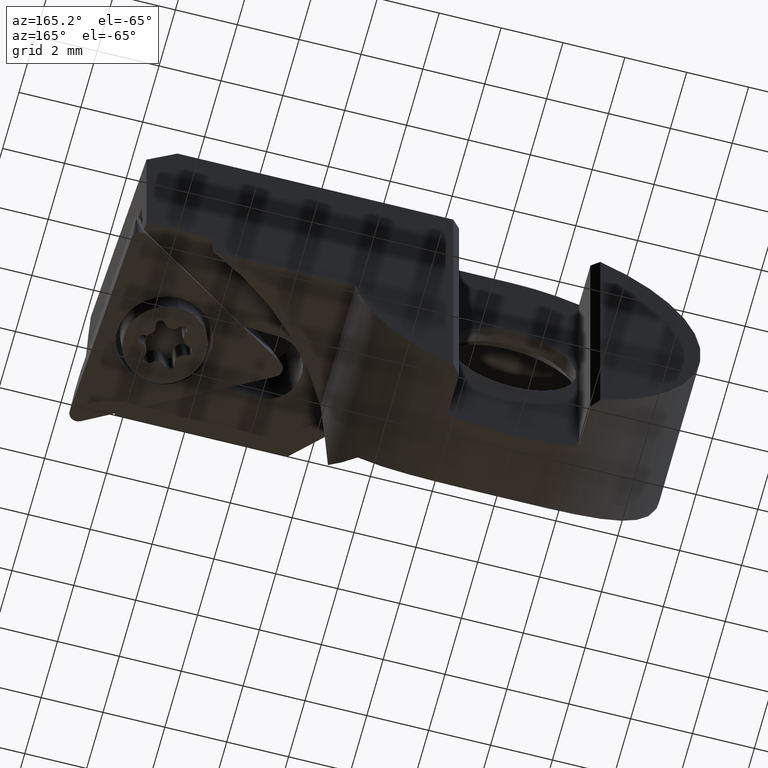
[diagram: clean part render]
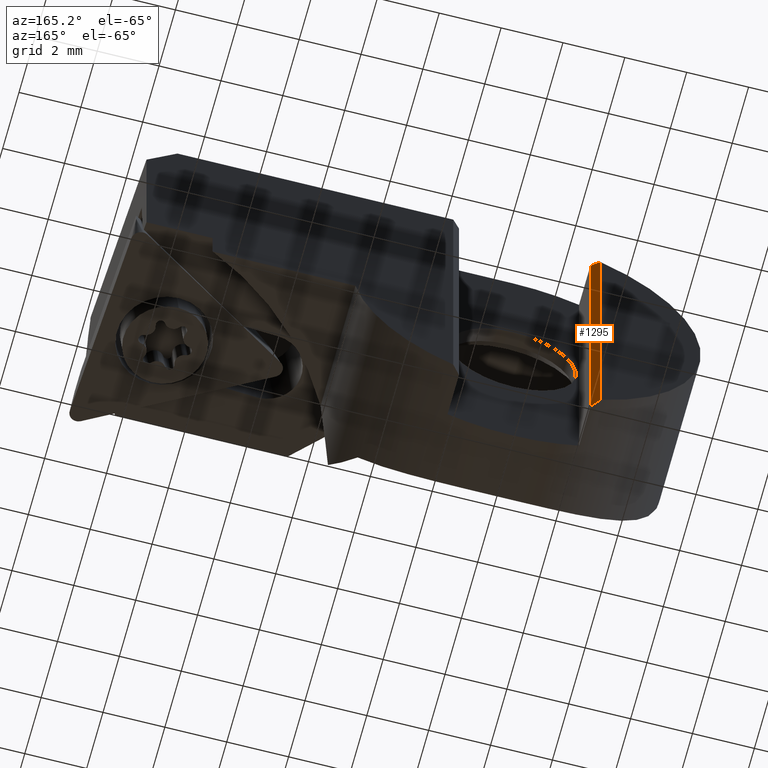
[diagram: same view with one face highlighted and labeled with its STEP entity id]
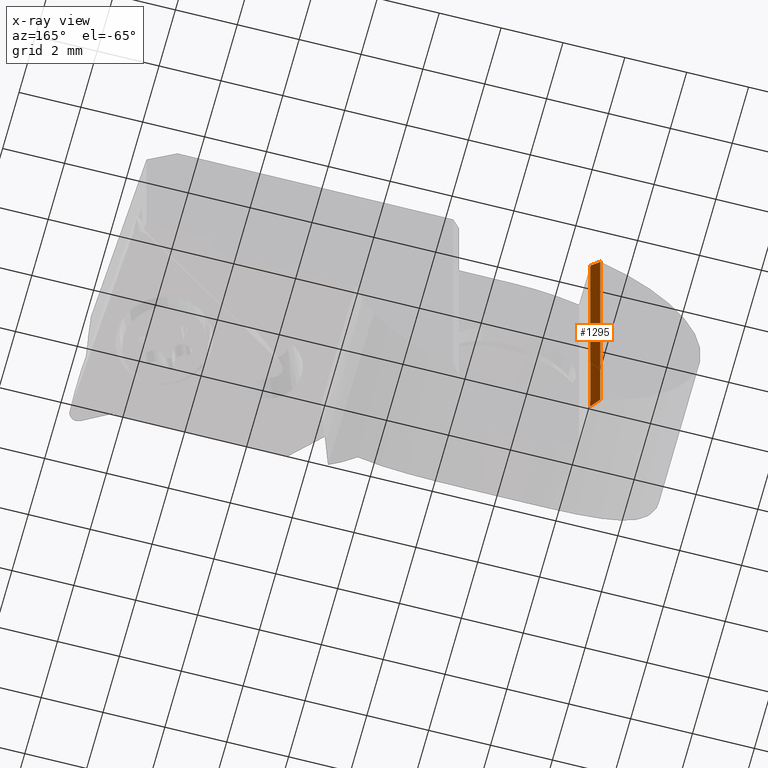
[diagram: x-ray of the same camera — body ghosted, the highlighted face saturated]
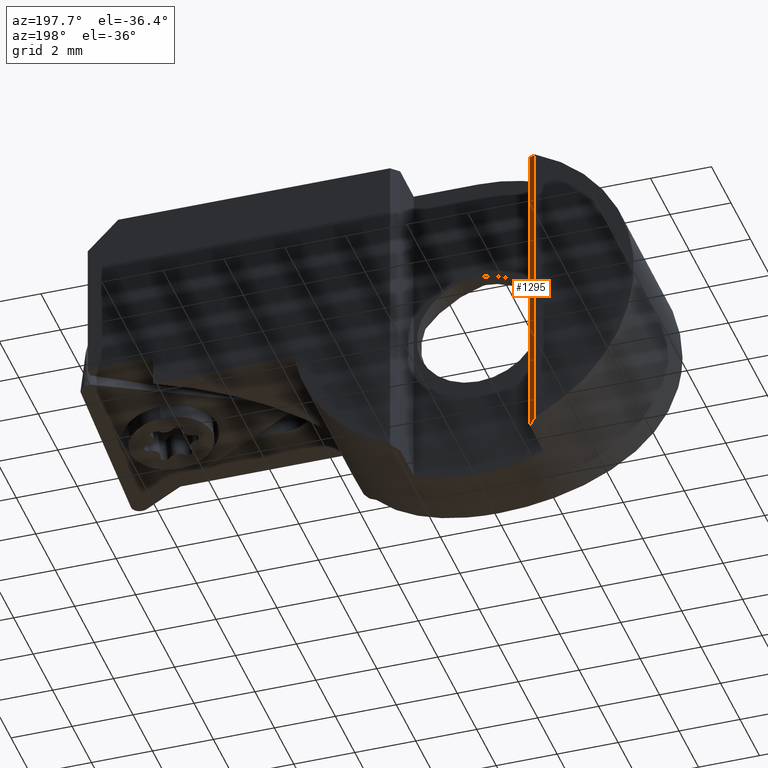
[diagram: same view with one face highlighted and labeled with its STEP entity id]
A machine part, auxiliary view. The second image highlights one B-rep face of the part: STEP entity #1295.
The next image is the same camera in x-ray: the body ghosted, the highlighted face saturated — about 0% of this face is hidden behind the body in this view.
A second angle (auxiliary view) of the same face is appended — the face is thin or edge-on in the first view.
In plain terms, the highlighted planar face has unit normal (-0.7071, -0.7071, 0).
Its self-contained STEP definition (entity closure, byte-faithful):
#577=EDGE_CURVE('NONE',#1327,#985,#1573,.F.);
#667=EDGE_CURVE('NONE',#1333,#1327,#1672,.F.);
#679=VERTEX_POINT('NONE',#1685);
#985=VERTEX_POINT('NONE',#2021);
#989=EDGE_CURVE('NONE',#985,#679,#2025,.F.);
#1145=EDGE_CURVE('NONE',#679,#1333,#2202,.T.);
#1295=ADVANCED_FACE('NONE',(#2365),#2366,.F.);
#1327=VERTEX_POINT('NONE',#2406);
#1333=VERTEX_POINT('NONE',#2414);
#1573=LINE('',#2737,#2738);
#1672=ELLIPSE('',#2954,7.95495128834864,5.625);
#1685=CARTESIAN_POINT('',(-2.375,0.0,5.09901951359278));
#2021=CARTESIAN_POINT('',(-2.125,-0.250000000000001,5.20816666399992));
#2025=ELLIPSE('',#4048,7.95495128834864,5.625);
#2202=LINE('',#4298,#4299);
#2365=FACE_OUTER_BOUND('',#4553,.T.);
#2366=PLANE('',#4554);
#2406=CARTESIAN_POINT('',(-2.125,-0.250000000000001,-5.20816666399992));
#2414=CARTESIAN_POINT('',(-2.375,0.0,-5.09901951359278));
#2737=CARTESIAN_POINT('',(-2.125,-0.249999999999999,-6.0));
#2738=VECTOR('',#4927,1.0);
#2954=AXIS2_PLACEMENT_3D('',#5041,#5042,#5043);
#4048=AXIS2_PLACEMENT_3D('',#5475,#5476,#5477);
#4298=CARTESIAN_POINT('',(-2.375,0.0,-3.0));
#4299=VECTOR('',#5726,1.0);
#4553=EDGE_LOOP('',(#5891,#5892,#5893,#5894));
#4554=AXIS2_PLACEMENT_3D('',#5895,#5896,#5897);
#4927=DIRECTION('',(-1.22464679914735E-016,0.0,-1.0));
#5041=CARTESIAN_POINT('',(0.0,-2.37499999999999,0.0));
#5042=DIRECTION('',(0.707106781186546,0.707106781186549,-8.65956056235492E-017));
#5043=DIRECTION('',(0.707106781186549,-0.707106781186546,-8.65956056235495E-017));
#5475=CARTESIAN_POINT('',(0.0,-2.37499999999999,0.0));
#5476=DIRECTION('',(0.707106781186546,0.707106781186549,-8.65956056235492E-017));
#5477=DIRECTION('',(0.707106781186549,-0.707106781186546,-8.65956056235495E-017));
#5726=DIRECTION('',(-1.22464679914735E-016,0.0,-1.0));
#5891=ORIENTED_EDGE('',*,*,#1145,.F.);
#5892=ORIENTED_EDGE('',*,*,#989,.F.);
#5893=ORIENTED_EDGE('',*,*,#577,.F.);
#5894=ORIENTED_EDGE('',*,*,#667,.F.);
#5895=CARTESIAN_POINT('',(-2.125,-0.249999999999999,-6.0));
#5896=DIRECTION('',(-0.707106781186546,-0.707106781186549,8.65956056235492E-017));
#5897=DIRECTION('',(1.22464679914735E-016,0.0,1.0));